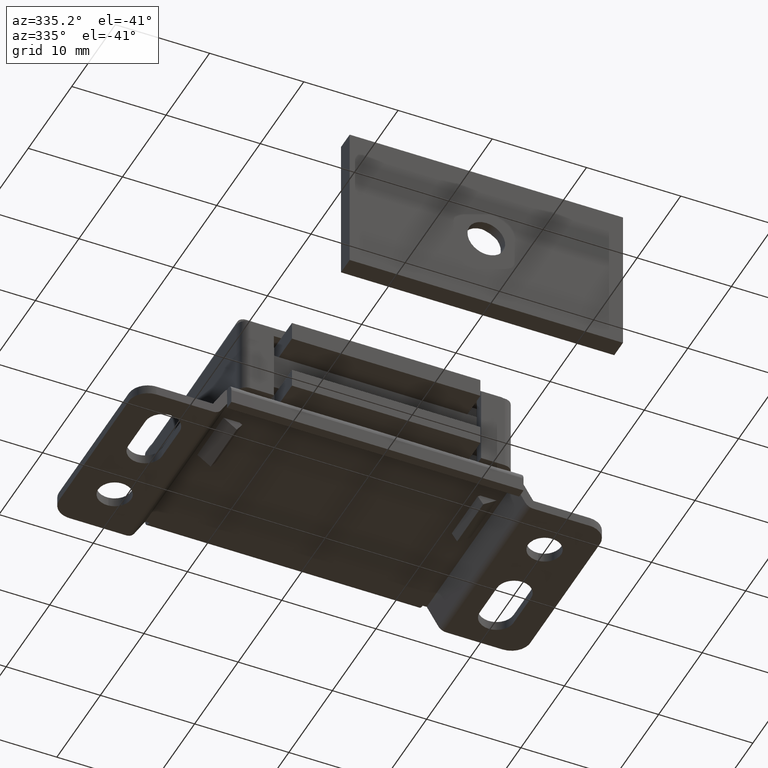
[diagram: clean part render]
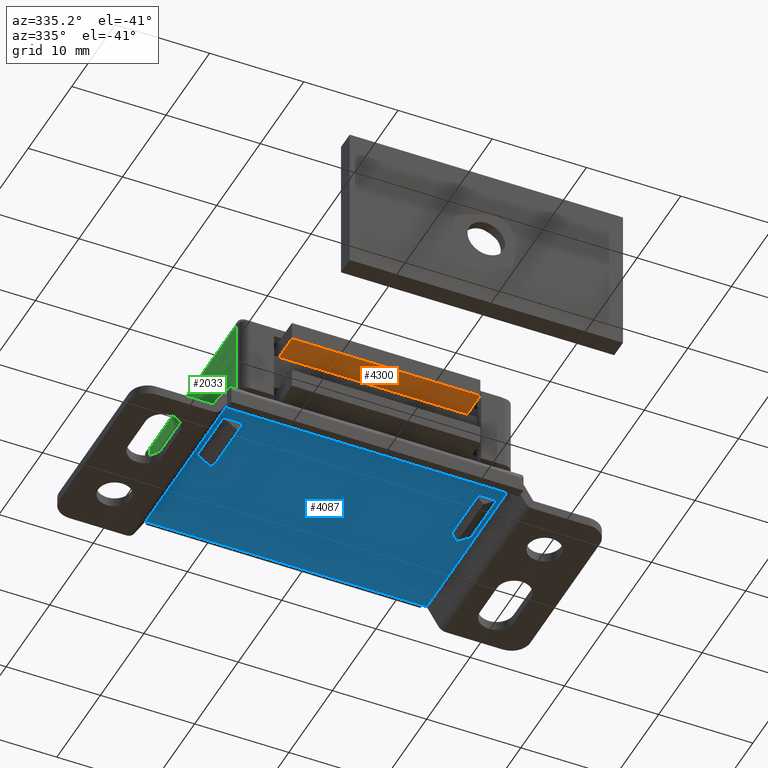
[diagram: same view with three faces highlighted in distinct colors, each labeled with its STEP entity id]
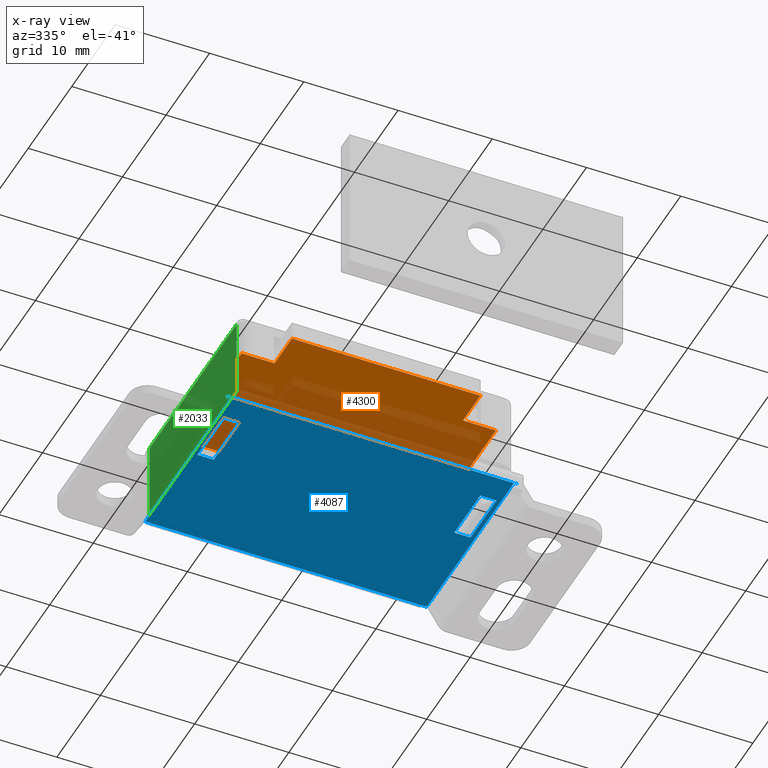
[diagram: x-ray of the same camera — body ghosted, the three highlighted faces saturated]
A machine part, auxiliary view with three faces highlighted in distinct colors.
The next image is the same camera in x-ray (body ghosted, the three faces saturated) — at least one of them is partly hidden behind the body in this view.
Their STEP definitions:

[orange] entity #4300 — the highlighted face is a freeform B-spline surface patch.
#4237=CARTESIAN_POINT('',(-14.848649947668759,-5.100900034887492,9.500000000000000));
#4238=CARTESIAN_POINT('',(14.848650671865190,-5.100900034887492,9.500000000000000));
#4239=CARTESIAN_POINT('',(-14.848649947668759,-24.899100447910129,9.500000000000000));
#4240=CARTESIAN_POINT('',(14.848650671865190,-24.899100447910129,9.500000000000000));
#4241=B_SPLINE_SURFACE_WITH_KNOTS('',1,1,((#4237,#4239),(#4238,#4240)),.UNSPECIFIED.,.F.,.F.,.U.,(2,2),(2,2),(0.0,29.697300619533959),(0.0,19.798200413022641),.UNSPECIFIED.);
#4242=CARTESIAN_POINT('',(10.0,-20.0,9.500000000000000));
#4243=VERTEX_POINT('',#4242);
#4244=CARTESIAN_POINT('',(10.0,-24.0,9.500000000000000));
#4245=VERTEX_POINT('',#4244);
#4246=CARTESIAN_POINT('',(10.0,-20.0,9.500000000000000));
#4247=CARTESIAN_POINT('',(10.0,-24.0,9.500000000000000));
#4248=QUASI_UNIFORM_CURVE('',1,(#4246,#4247),.UNSPECIFIED.,.F.,.U.);
#4249=EDGE_CURVE('',#4243,#4245,#4248,.T.);
#4250=ORIENTED_EDGE('',*,*,#4249,.T.);
#4251=CARTESIAN_POINT('',(-10.0,-24.0,9.500000000000000));
#4252=VERTEX_POINT('',#4251);
#4253=CARTESIAN_POINT('',(10.0,-24.0,9.500000000000000));
#4254=CARTESIAN_POINT('',(-10.0,-24.0,9.500000000000000));
#4255=QUASI_UNIFORM_CURVE('',1,(#4253,#4254),.UNSPECIFIED.,.F.,.U.);
#4256=EDGE_CURVE('',#4245,#4252,#4255,.T.);
#4257=ORIENTED_EDGE('',*,*,#4256,.T.);
#4258=CARTESIAN_POINT('',(-10.0,-20.0,9.500000000000000));
#4259=VERTEX_POINT('',#4258);
#4260=CARTESIAN_POINT('',(-10.0,-24.0,9.500000000000000));
#4261=CARTESIAN_POINT('',(-10.0,-20.0,9.500000000000000));
#4262=QUASI_UNIFORM_CURVE('',1,(#4260,#4261),.UNSPECIFIED.,.F.,.U.);
#4263=EDGE_CURVE('',#4252,#4259,#4262,.T.);
#4264=ORIENTED_EDGE('',*,*,#4263,.T.);
#4265=CARTESIAN_POINT('',(-13.500000000000000,-20.0,9.500000000000000));
#4266=VERTEX_POINT('',#4265);
#4267=CARTESIAN_POINT('',(-10.0,-20.0,9.500000000000000));
#4268=CARTESIAN_POINT('',(-13.500000000000000,-20.0,9.500000000000000));
#4269=QUASI_UNIFORM_CURVE('',1,(#4267,#4268),.UNSPECIFIED.,.F.,.U.);
#4270=EDGE_CURVE('',#4259,#4266,#4269,.T.);
#4271=ORIENTED_EDGE('',*,*,#4270,.T.);
#4272=CARTESIAN_POINT('',(-13.500000000000000,-6.0,9.500000000000000));
#4273=VERTEX_POINT('',#4272);
#4274=CARTESIAN_POINT('',(-13.500000000000000,-20.0,9.500000000000000));
#4275=CARTESIAN_POINT('',(-13.500000000000000,-6.0,9.500000000000000));
#4276=QUASI_UNIFORM_CURVE('',1,(#4274,#4275),.UNSPECIFIED.,.F.,.U.);
#4277=EDGE_CURVE('',#4266,#4273,#4276,.T.);
#4278=ORIENTED_EDGE('',*,*,#4277,.T.);
#4279=CARTESIAN_POINT('',(13.500000000000000,-6.0,9.500000000000000));
#4280=VERTEX_POINT('',#4279);
#4281=CARTESIAN_POINT('',(-13.500000000000000,-6.0,9.500000000000000));
#4282=CARTESIAN_POINT('',(13.500000000000000,-6.0,9.500000000000000));
#4283=QUASI_UNIFORM_CURVE('',1,(#4281,#4282),.UNSPECIFIED.,.F.,.U.);
#4284=EDGE_CURVE('',#4273,#4280,#4283,.T.);
#4285=ORIENTED_EDGE('',*,*,#4284,.T.);
#4286=CARTESIAN_POINT('',(13.500000000000000,-20.0,9.500000000000000));
#4287=VERTEX_POINT('',#4286);
#4288=CARTESIAN_POINT('',(13.500000000000000,-6.0,9.500000000000000));
#4289=CARTESIAN_POINT('',(13.500000000000000,-20.0,9.500000000000000));
#4290=QUASI_UNIFORM_CURVE('',1,(#4288,#4289),.UNSPECIFIED.,.F.,.U.);
#4291=EDGE_CURVE('',#4280,#4287,#4290,.T.);
#4292=ORIENTED_EDGE('',*,*,#4291,.T.);
#4293=CARTESIAN_POINT('',(13.500000000000000,-20.0,9.500000000000000));
#4294=CARTESIAN_POINT('',(10.0,-20.0,9.500000000000000));
#4295=QUASI_UNIFORM_CURVE('',1,(#4293,#4294),.UNSPECIFIED.,.F.,.U.);
#4296=EDGE_CURVE('',#4287,#4243,#4295,.T.);
#4297=ORIENTED_EDGE('',*,*,#4296,.T.);
#4298=EDGE_LOOP('',(#4250,#4257,#4264,#4271,#4278,#4285,#4292,#4297));
#4299=FACE_OUTER_BOUND('',#4298,.T.);
#4300=ADVANCED_FACE('',(#4299),#4241,.T.);

[blue] entity #4087 — the highlighted face is a freeform B-spline surface patch.
#1988=CARTESIAN_POINT('',(14.500004000000001,-1.0,2.500000000000000));
#1989=VERTEX_POINT('',#1988);
#2039=CARTESIAN_POINT('',(-14.500000000000000,-1.0,2.500000000000000));
#2040=VERTEX_POINT('',#2039);
#2584=CARTESIAN_POINT('',(-14.499983999999900,-18.0,2.500000000000000));
#2585=VERTEX_POINT('',#2584);
#2600=CARTESIAN_POINT('',(-12.761046999999900,-18.0,2.500000000000000));
#2601=VERTEX_POINT('',#2600);
#2607=CARTESIAN_POINT('',(-12.761046999999900,-18.0,2.500000000000000));
#2608=CARTESIAN_POINT('',(-14.499983999999900,-18.0,2.500000000000000));
#2609=QUASI_UNIFORM_CURVE('',1,(#2607,#2608),.UNSPECIFIED.,.F.,.U.);
#2610=EDGE_CURVE('',#2601,#2585,#2609,.T.);
#2620=CARTESIAN_POINT('',(-14.499983999999900,-12.0,2.500000000000000));
#2621=VERTEX_POINT('',#2620);
#2629=CARTESIAN_POINT('',(-12.761046999999900,-12.0,2.500000000000000));
#2630=VERTEX_POINT('',#2629);
#2631=CARTESIAN_POINT('',(-12.761046999999900,-12.0,2.500000000000000));
#2632=CARTESIAN_POINT('',(-14.499983999999900,-12.0,2.500000000000000));
#2633=QUASI_UNIFORM_CURVE('',1,(#2631,#2632),.UNSPECIFIED.,.F.,.U.);
#2634=EDGE_CURVE('',#2630,#2621,#2633,.T.);
#2663=CARTESIAN_POINT('',(-12.761046999999900,-12.0,2.500000000000000));
#2664=CARTESIAN_POINT('',(-12.761046999999900,-18.0,2.500000000000000));
#2665=QUASI_UNIFORM_CURVE('',1,(#2663,#2664),.UNSPECIFIED.,.F.,.U.);
#2666=EDGE_CURVE('',#2630,#2601,#2665,.T.);
#2693=CARTESIAN_POINT('',(-14.499983999999900,-12.0,2.500000000000000));
#2694=CARTESIAN_POINT('',(-14.499983999999900,-18.0,2.500000000000000));
#2695=QUASI_UNIFORM_CURVE('',1,(#2693,#2694),.UNSPECIFIED.,.F.,.U.);
#2696=EDGE_CURVE('',#2621,#2585,#2695,.T.);
#2709=CARTESIAN_POINT('',(14.499983999999900,-18.0,2.500000000000000));
#2710=VERTEX_POINT('',#2709);
#2716=CARTESIAN_POINT('',(12.761046999999900,-18.0,2.500000000000000));
#2717=VERTEX_POINT('',#2716);
#2718=CARTESIAN_POINT('',(14.499983999999900,-18.0,2.500000000000000));
#2719=CARTESIAN_POINT('',(12.761046999999900,-18.0,2.500000000000000));
#2720=QUASI_UNIFORM_CURVE('',1,(#2718,#2719),.UNSPECIFIED.,.F.,.U.);
#2721=EDGE_CURVE('',#2710,#2717,#2720,.T.);
#2737=CARTESIAN_POINT('',(12.761046999999900,-12.0,2.500000000000000));
#2738=VERTEX_POINT('',#2737);
#2744=CARTESIAN_POINT('',(14.499983999999900,-12.0,2.500000000000000));
#2745=VERTEX_POINT('',#2744);
#2746=CARTESIAN_POINT('',(14.499983999999900,-12.0,2.500000000000000));
#2747=CARTESIAN_POINT('',(12.761046999999900,-12.0,2.500000000000000));
#2748=QUASI_UNIFORM_CURVE('',1,(#2746,#2747),.UNSPECIFIED.,.F.,.U.);
#2749=EDGE_CURVE('',#2745,#2738,#2748,.T.);
#2765=CARTESIAN_POINT('',(12.761046999999900,-12.0,2.500000000000000));
#2766=CARTESIAN_POINT('',(12.761046999999900,-18.0,2.500000000000000));
#2767=QUASI_UNIFORM_CURVE('',1,(#2765,#2766),.UNSPECIFIED.,.F.,.U.);
#2768=EDGE_CURVE('',#2738,#2717,#2767,.T.);
#2783=CARTESIAN_POINT('',(14.499983999999900,-12.0,2.500000000000000));
#2784=CARTESIAN_POINT('',(14.499983999999900,-18.0,2.500000000000000));
#2785=QUASI_UNIFORM_CURVE('',1,(#2783,#2784),.UNSPECIFIED.,.F.,.U.);
#2786=EDGE_CURVE('',#2745,#2710,#2785,.T.);
#2798=CARTESIAN_POINT('',(15.500003999999951,-21.009992000000000,2.500000000000000));
#2799=VERTEX_POINT('',#2798);
#2812=CARTESIAN_POINT('',(-15.500000000000000,-21.009992000000000,2.500000000000000));
#2813=VERTEX_POINT('',#2812);
#2819=CARTESIAN_POINT('',(-15.500000000000000,-21.009992000000000,2.500000000000000));
#2820=CARTESIAN_POINT('',(15.500003999999951,-21.009992000000000,2.500000000000000));
#2821=QUASI_UNIFORM_CURVE('',1,(#2819,#2820),.UNSPECIFIED.,.F.,.U.);
#2822=EDGE_CURVE('',#2813,#2799,#2821,.T.);
#2898=CARTESIAN_POINT('',(-14.500000000000000,-1.0,2.500000000000000));
#2899=CARTESIAN_POINT('',(14.500004000000001,-1.0,2.500000000000000));
#2900=QUASI_UNIFORM_CURVE('',1,(#2898,#2899),.UNSPECIFIED.,.F.,.U.);
#2901=EDGE_CURVE('',#2040,#1989,#2900,.T.);
#3649=CARTESIAN_POINT('',(14.933804895014900,-1.0,2.500000000000000));
#3650=VERTEX_POINT('',#3649);
#3656=CARTESIAN_POINT('',(14.933804895014900,-1.0,2.500000000000000));
#3657=CARTESIAN_POINT('',(14.500004000000001,-1.0,2.500000000000000));
#3658=QUASI_UNIFORM_CURVE('',1,(#3656,#3657),.UNSPECIFIED.,.F.,.U.);
#3659=EDGE_CURVE('',#3650,#1989,#3658,.T.);
#3683=CARTESIAN_POINT('',(14.933804895014839,-21.0,2.500000000000000));
#3684=VERTEX_POINT('',#3683);
#3690=CARTESIAN_POINT('',(14.933804895014839,-21.0,2.500000000000000));
#3691=CARTESIAN_POINT('',(14.933804895014900,-1.0,2.500000000000000));
#3692=QUASI_UNIFORM_CURVE('',1,(#3690,#3691),.UNSPECIFIED.,.F.,.U.);
#3693=EDGE_CURVE('',#3684,#3650,#3692,.T.);
#3823=CARTESIAN_POINT('',(-14.933821898012740,-21.0,2.500000000000000));
#3824=VERTEX_POINT('',#3823);
#3831=CARTESIAN_POINT('',(-14.933823000000000,-1.0,2.500000000000000));
#3832=VERTEX_POINT('',#3831);
#3838=CARTESIAN_POINT('',(-14.933821898012740,-21.0,2.500000000000000));
#3839=CARTESIAN_POINT('',(-14.933823000000000,-1.0,2.500000000000000));
#3840=QUASI_UNIFORM_CURVE('',1,(#3838,#3839),.UNSPECIFIED.,.F.,.U.);
#3841=EDGE_CURVE('',#3824,#3832,#3840,.T.);
#3986=CARTESIAN_POINT('',(-14.500000000000000,-1.0,2.500000000000000));
#3987=CARTESIAN_POINT('',(-14.933823000000000,-1.0,2.500000000000000));
#3988=QUASI_UNIFORM_CURVE('',1,(#3986,#3987),.UNSPECIFIED.,.F.,.U.);
#3989=EDGE_CURVE('',#2040,#3832,#3988,.T.);
#4006=CARTESIAN_POINT('',(15.500003999999951,-20.999991999999999,2.500000000000000));
#4007=VERTEX_POINT('',#4006);
#4013=CARTESIAN_POINT('',(14.933804895014839,-21.0,2.500000000000000));
#4014=CARTESIAN_POINT('',(15.500003999999951,-20.999991999999999,2.500000000000000));
#4015=QUASI_UNIFORM_CURVE('',1,(#4013,#4014),.UNSPECIFIED.,.F.,.U.);
#4016=EDGE_CURVE('',#3684,#4007,#4015,.T.);
#4035=CARTESIAN_POINT('',(-15.500000000000000,-20.999991999999999,2.500000000000000));
#4036=VERTEX_POINT('',#4035);
#4037=CARTESIAN_POINT('',(-15.500000000000000,-20.999991999999999,2.500000000000000));
#4038=CARTESIAN_POINT('',(-14.933821898012740,-21.0,2.500000000000000));
#4039=QUASI_UNIFORM_CURVE('',1,(#4037,#4038),.UNSPECIFIED.,.F.,.U.);
#4040=EDGE_CURVE('',#4036,#3824,#4039,.T.);
#4050=CARTESIAN_POINT('',(17.048454139715918,-22.009491061616760,2.500000000000000));
#4051=CARTESIAN_POINT('',(-17.048450971200879,-22.009491061616760,2.500000000000000));
#4052=CARTESIAN_POINT('',(17.048454139715918,-0.000500401673438,2.500000000000000));
#4053=CARTESIAN_POINT('',(-17.048450971200879,-0.000500401673438,2.500000000000000));
#4054=B_SPLINE_SURFACE_WITH_KNOTS('',1,1,((#4050,#4052),(#4051,#4053)),.UNSPECIFIED.,.F.,.F.,.U.,(2,2),(2,2),(0.0,34.096905110916801),(0.0,22.008990659943318),.UNSPECIFIED.);
#4055=ORIENTED_EDGE('',*,*,#3989,.F.);
#4056=ORIENTED_EDGE('',*,*,#2901,.T.);
#4057=ORIENTED_EDGE('',*,*,#3659,.F.);
#4058=ORIENTED_EDGE('',*,*,#3693,.F.);
#4059=ORIENTED_EDGE('',*,*,#4016,.T.);
#4060=CARTESIAN_POINT('',(15.500003999999951,-21.009992000000000,2.500000000000000));
#4061=CARTESIAN_POINT('',(15.500003999999951,-20.999991999999999,2.500000000000000));
#4062=QUASI_UNIFORM_CURVE('',1,(#4060,#4061),.UNSPECIFIED.,.F.,.U.);
#4063=EDGE_CURVE('',#2799,#4007,#4062,.T.);
#4064=ORIENTED_EDGE('',*,*,#4063,.F.);
#4065=ORIENTED_EDGE('',*,*,#2822,.F.);
#4066=CARTESIAN_POINT('',(-15.500000000000000,-21.009992000000000,2.500000000000000));
#4067=CARTESIAN_POINT('',(-15.500000000000000,-20.999991999999999,2.500000000000000));
#4068=QUASI_UNIFORM_CURVE('',1,(#4066,#4067),.UNSPECIFIED.,.F.,.U.);
#4069=EDGE_CURVE('',#2813,#4036,#4068,.T.);
#4070=ORIENTED_EDGE('',*,*,#4069,.T.);
#4071=ORIENTED_EDGE('',*,*,#4040,.T.);
#4072=ORIENTED_EDGE('',*,*,#3841,.T.);
#4073=EDGE_LOOP('',(#4055,#4056,#4057,#4058,#4059,#4064,#4065,#4070,#4071,#4072));
#4074=FACE_OUTER_BOUND('',#4073,.T.);
#4075=ORIENTED_EDGE('',*,*,#2749,.T.);
#4076=ORIENTED_EDGE('',*,*,#2768,.T.);
#4077=ORIENTED_EDGE('',*,*,#2721,.F.);
#4078=ORIENTED_EDGE('',*,*,#2786,.F.);
#4079=EDGE_LOOP('',(#4075,#4076,#4077,#4078));
#4080=FACE_BOUND('',#4079,.T.);
#4081=ORIENTED_EDGE('',*,*,#2666,.F.);
#4082=ORIENTED_EDGE('',*,*,#2634,.T.);
#4083=ORIENTED_EDGE('',*,*,#2696,.T.);
#4084=ORIENTED_EDGE('',*,*,#2610,.F.);
#4085=EDGE_LOOP('',(#4081,#4082,#4083,#4084));
#4086=FACE_BOUND('',#4085,.T.);
#4087=ADVANCED_FACE('',(#4074,#4080,#4086),#4054,.T.);

[green] entity #2033 — the highlighted face is a freeform B-spline surface patch.
#1293=CARTESIAN_POINT('',(-14.500000000000000,-21.0,12.0));
#1294=VERTEX_POINT('',#1293);
#1477=CARTESIAN_POINT('',(-14.500000000000000,-1.009999999999954,12.0));
#1478=VERTEX_POINT('',#1477);
#1484=CARTESIAN_POINT('',(-14.500000000000000,-21.0,12.0));
#1485=CARTESIAN_POINT('',(-14.500000000000000,-1.009999999999954,12.0));
#1486=QUASI_UNIFORM_CURVE('',1,(#1484,#1485),.UNSPECIFIED.,.F.,.U.);
#1487=EDGE_CURVE('',#1294,#1478,#1486,.T.);
#1800=CARTESIAN_POINT('',(-14.500000000000000,-20.999991999999999,3.500000000000000));
#1801=VERTEX_POINT('',#1800);
#1802=CARTESIAN_POINT('',(-14.500000000000000,-20.999991999999999,3.500000000000000));
#1803=CARTESIAN_POINT('',(-14.500000000000000,-21.0,12.0));
#1804=QUASI_UNIFORM_CURVE('',1,(#1802,#1803),.UNSPECIFIED.,.F.,.U.);
#1805=EDGE_CURVE('',#1801,#1294,#1804,.T.);
#2012=CARTESIAN_POINT('',(-14.500000000000000,-21.998500461255500,3.075425016474649));
#2013=CARTESIAN_POINT('',(-14.500000000000000,-21.998500461255500,12.424575211513121));
#2014=CARTESIAN_POINT('',(-14.500000000000000,-0.011499002570867,3.075425016474650));
#2015=CARTESIAN_POINT('',(-14.500000000000000,-0.011499002570867,12.424575211513121));
#2016=B_SPLINE_SURFACE_WITH_KNOTS('',1,1,((#2012,#2014),(#2013,#2015)),.UNSPECIFIED.,.F.,.F.,.U.,(2,2),(2,2),(0.0,9.349150195038469),(0.0,21.987001458684631),.UNSPECIFIED.);
#2017=ORIENTED_EDGE('',*,*,#1487,.T.);
#2018=CARTESIAN_POINT('',(-14.500000000000000,-1.010000000000000,3.500000000000000));
#2019=VERTEX_POINT('',#2018);
#2020=CARTESIAN_POINT('',(-14.500000000000000,-1.009999999999954,12.0));
#2021=CARTESIAN_POINT('',(-14.500000000000000,-1.010000000000000,3.500000000000000));
#2022=QUASI_UNIFORM_CURVE('',1,(#2020,#2021),.UNSPECIFIED.,.F.,.U.);
#2023=EDGE_CURVE('',#1478,#2019,#2022,.T.);
#2024=ORIENTED_EDGE('',*,*,#2023,.T.);
#2025=CARTESIAN_POINT('',(-14.500000000000000,-1.010000000000000,3.500000000000000));
#2026=CARTESIAN_POINT('',(-14.500000000000000,-20.999991999999999,3.500000000000000));
#2027=QUASI_UNIFORM_CURVE('',1,(#2025,#2026),.UNSPECIFIED.,.F.,.U.);
#2028=EDGE_CURVE('',#2019,#1801,#2027,.T.);
#2029=ORIENTED_EDGE('',*,*,#2028,.T.);
#2030=ORIENTED_EDGE('',*,*,#1805,.T.);
#2031=EDGE_LOOP('',(#2017,#2024,#2029,#2030));
#2032=FACE_OUTER_BOUND('',#2031,.T.);
#2033=ADVANCED_FACE('',(#2032),#2016,.T.);